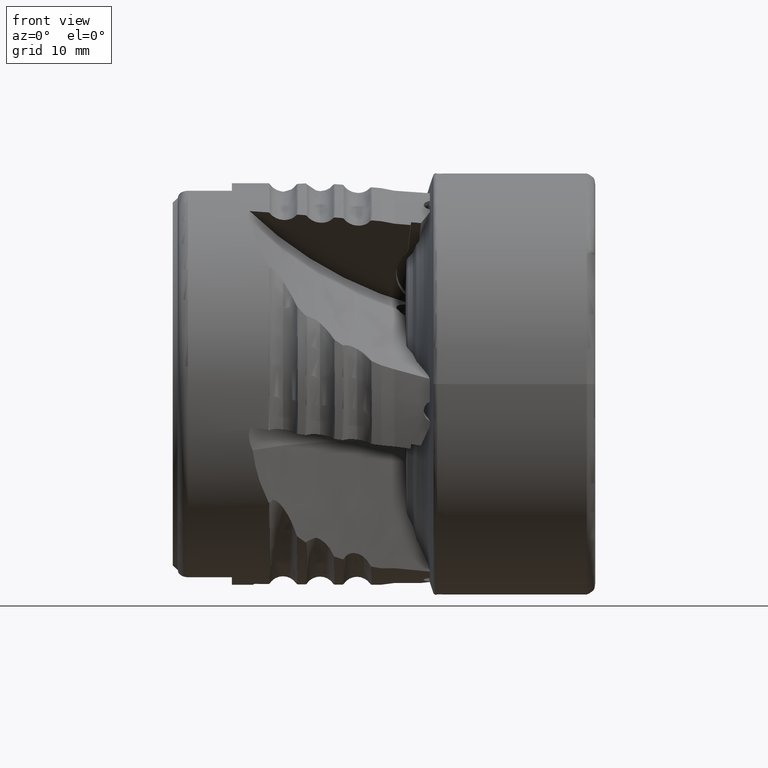
[diagram: clean part render]
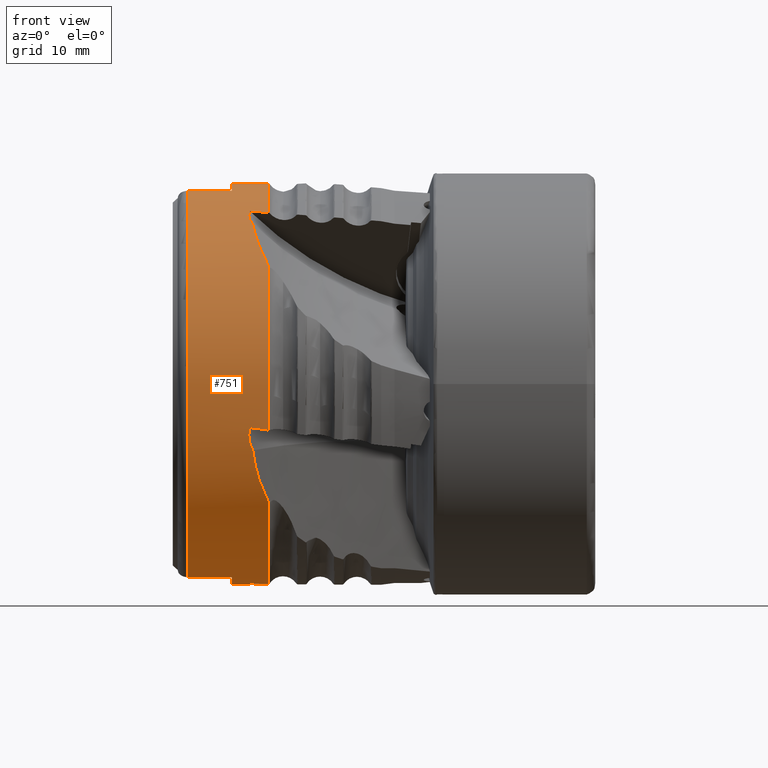
[diagram: same view with one face highlighted and labeled with its STEP entity id]
A machine part, front view. The second image highlights one B-rep face of the part: STEP entity #751.
In plain terms, the highlighted cylindrical surface (partial cylindrical patch) has radius 19 mm, axis along (1, -0, -0).
Its self-contained STEP definition (entity closure, byte-faithful):
#52 = CIRCLE ( 'NONE', #12871, 18.99999999999999645 ) ;
#86 = CARTESIAN_POINT ( 'NONE',  ( -31.36972384139765424, -17.77613083125737603, -6.725722720371739349 ) ) ;
#150 = CARTESIAN_POINT ( 'NONE',  ( -31.01255052282473557, -17.02613683079857765, -8.445114745144044477 ) ) ;
#168 = CARTESIAN_POINT ( 'NONE',  ( -29.95978721798715938, -1.566844918268218478, -18.93528444471053618 ) ) ;
#196 = DIRECTION ( 'NONE',  ( 0.0000000000000000000, 0.0000000000000000000, -1.000000000000000000 ) ) ;
#247 = CARTESIAN_POINT ( 'NONE',  ( -30.64794020038512201, -16.38685649265457300, -9.659613245262226755 ) ) ;
#259 = EDGE_CURVE ( 'NONE', #3836, #9022, #8375, .T. ) ;
#264 = CARTESIAN_POINT ( 'NONE',  ( -31.72241613714368214, -1.814566257837055163, -18.91315281215478805 ) ) ;
#449 = B_SPLINE_CURVE_WITH_KNOTS ( 'NONE', 3,
 ( #7345, #4895, #247, #150, #13425, #10919, #86, #12149 ),
 .UNSPECIFIED., .F., .F.,
 ( 4, 2, 2, 4 ),
 ( 4.971482375086823926E-07, 0.002839202081864523712, 0.004258554548678028691, 0.005677907015491536272 ),
 .UNSPECIFIED. ) ;
#461 = EDGE_CURVE ( 'NONE', #14911, #10778, #8873, .T. ) ;
#659 = DIRECTION ( 'NONE',  ( 1.000000000000000000, -0.0000000000000000000, -0.0000000000000000000 ) ) ;
#699 = DIRECTION ( 'NONE',  ( 1.000000000000000000, -0.0000000000000000000, -0.0000000000000000000 ) ) ;
#751 = ADVANCED_FACE ( 'NONE', ( #8241 ), #6740, .T. ) ;
#789 = DIRECTION ( 'NONE',  ( 0.0000000000000000000, 0.0000000000000000000, -1.000000000000000000 ) ) ;
#951 = DIRECTION ( 'NONE',  ( 1.000000000000000000, -0.0000000000000000000, -0.0000000000000000000 ) ) ;
#954 = ORIENTED_EDGE ( 'NONE', *, *, #7636, .F. ) ;
#1110 = CARTESIAN_POINT ( 'NONE',  ( -33.39999999999999147, 0.0000000000000000000, -18.99999999999999645 ) ) ;
#1114 =( BOUNDED_CURVE ( )  B_SPLINE_CURVE ( 3, ( #168, #2526, #11868, #2479 ),
 .UNSPECIFIED., .F., .T. ) 
 B_SPLINE_CURVE_WITH_KNOTS ( ( 4, 4 ),
 ( 1.653355604663631739, 1.666445593064935560 ),
 .UNSPECIFIED. ) 
 CURVE ( )  GEOMETRIC_REPRESENTATION_ITEM ( )  RATIONAL_B_SPLINE_CURVE ( ( 1.000000000000000000, 0.9999857210679433672, 0.9999857210679433672, 1.000000000000000000 ) ) 
 REPRESENTATION_ITEM ( '' )  );
#1180 = DIRECTION ( 'NONE',  ( 1.000000000000000000, -0.0000000000000000000, -0.0000000000000000000 ) ) ;
#1183 = CARTESIAN_POINT ( 'NONE',  ( -31.79837881631135943, -10.46221796008383542, 15.86120594255551275 ) ) ;
#1197 = ORIENTED_EDGE ( 'NONE', *, *, #12052, .F. ) ;
#1334 = CARTESIAN_POINT ( 'NONE',  ( -31.72241613714353647, -9.648857357328893158, 16.36763732790775450 ) ) ;
#1340 = DIRECTION ( 'NONE',  ( -1.000000000000000000, -0.0000000000000000000, 0.0000000000000000000 ) ) ;
#1574 = VERTEX_POINT ( 'NONE', #4521 ) ;
#1726 = LINE ( 'NONE', #8341, #2291 ) ;
#1778 = VERTEX_POINT ( 'NONE', #3993 ) ;
#1785 = EDGE_CURVE ( 'NONE', #3836, #14911, #11710, .T. ) ;
#1954 = VERTEX_POINT ( 'NONE', #10511 ) ;
#1956 = LINE ( 'NONE', #8704, #6421 ) ;
#2220 = DIRECTION ( 'NONE',  ( 1.000000000000000000, -0.0000000000000000000, -0.0000000000000000000 ) ) ;
#2291 = VECTOR ( 'NONE', #14421, 1000.000000000000000 ) ;
#2462 = ORIENTED_EDGE ( 'NONE', *, *, #8999, .F. ) ;
#2479 = CARTESIAN_POINT ( 'NONE',  ( -31.72241613714368214, -1.814566257837055163, -18.91315281215478805 ) ) ;
#2512 = CARTESIAN_POINT ( 'NONE',  ( -33.39999999999999147, -5.145316538372412651, 18.29004422411141206 ) ) ;
#2523 = EDGE_CURVE ( 'NONE', #5032, #8852, #12616, .T. ) ;
#2526 = CARTESIAN_POINT ( 'NONE',  ( -30.54766955579376386, -1.649466392730352116, -18.92844773529754931 ) ) ;
#2592 = VERTEX_POINT ( 'NONE', #2512 ) ;
#2660 = CIRCLE ( 'NONE', #9278, 18.99999999999999645 ) ;
#2747 = ORIENTED_EDGE ( 'NONE', *, *, #11428, .F. ) ;
#2862 = CARTESIAN_POINT ( 'NONE',  ( -31.51155348301428560, -17.99000763206012365, -6.114666803030551101 ) ) ;
#3118 = B_SPLINE_CURVE_WITH_KNOTS ( 'NONE', 3,
 ( #12392, #2862, #8697, #5100, #13619, #11052, #10003, #3884, #8648, #6455 ),
 .UNSPECIFIED., .F., .F.,
 ( 4, 2, 2, 2, 4 ),
 ( 0.002283460734623646380, 0.002858692298362381159, 0.003433923862101116373, 0.004009155425839851586, 0.004584386989578585932 ),
 .UNSPECIFIED. ) ;
#3134 = AXIS2_PLACEMENT_3D ( 'NONE', #9262, #12672, #789 ) ;
#3153 = EDGE_CURVE ( 'NONE', #6307, #11660, #1956, .T. ) ;
#3210 = CARTESIAN_POINT ( 'NONE',  ( -31.29701550650824160, -12.25470955441869059, 14.52729393647962652 ) ) ;
#3258 = CARTESIAN_POINT ( 'NONE',  ( -29.95978721798715938, 2.326828918379970576E-15, 18.99999999999999645 ) ) ;
#3282 = ORIENTED_EDGE ( 'NONE', *, *, #14799, .T. ) ;
#3497 = CARTESIAN_POINT ( 'NONE',  ( -31.76524766129033139, -9.810493652589578062, 16.27235139717186740 ) ) ;
#3601 = CARTESIAN_POINT ( 'NONE',  ( -31.80790247462925890, -10.30235358579706606, 15.96554395794222714 ) ) ;
#3836 = VERTEX_POINT ( 'NONE', #4839 ) ;
#3863 = EDGE_CURVE ( 'NONE', #2592, #1954, #1726, .T. ) ;
#3884 = CARTESIAN_POINT ( 'NONE',  ( -31.79162386349023706, -18.46255960649975592, -4.491210978813469090 ) ) ;
#3993 = CARTESIAN_POINT ( 'NONE',  ( -31.42600630155891750, -17.93324261203765957, -6.276847092114104854 ) ) ;
#4021 = ORIENTED_EDGE ( 'NONE', *, *, #3153, .F. ) ;
#4154 = VERTEX_POINT ( 'NONE', #12266 ) ;
#4226 = CARTESIAN_POINT ( 'NONE',  ( -33.39999999999999147, 2.326828918379970576E-15, 18.99999999999999645 ) ) ;
#4294 = CARTESIAN_POINT ( 'NONE',  ( -31.80571154105185627, -1.051295878076865975, -18.97150323781345449 ) ) ;
#4445 = CARTESIAN_POINT ( 'NONE',  ( -30.64832295469817325, -14.24994367137193763, 12.60069228079974124 ) ) ;
#4501 = B_SPLINE_CURVE_WITH_KNOTS ( 'NONE', 3,
 ( #8650, #5103, #12673, #9047, #11464, #4294, #13783, #11417, #7795, #11308 ),
 .UNSPECIFIED., .F., .F.,
 ( 4, 2, 2, 2, 4 ),
 ( 0.002747438311852670473, 0.003206675481284301018, 0.003665912650715931129, 0.004125149820147561673, 0.004584386989579192218 ),
 .UNSPECIFIED. ) ;
#4512 = DIRECTION ( 'NONE',  ( 0.0000000000000000000, 0.0000000000000000000, -1.000000000000000000 ) ) ;
#4521 = CARTESIAN_POINT ( 'NONE',  ( -29.95978721798683964, -15.39553059027739224, -11.13452458993345928 ) ) ;
#4542 = VERTEX_POINT ( 'NONE', #1334 ) ;
#4752 = DIRECTION ( 'NONE',  ( 0.0000000000000000000, 5.329070518200751394E-15, -1.000000000000000000 ) ) ;
#4783 = CARTESIAN_POINT ( 'NONE',  ( -31.72241613714358621, -18.54820903677684996, -4.118730572400882473 ) ) ;
#4839 = CARTESIAN_POINT ( 'NONE',  ( -29.95978721798685385, -15.34704275691988506, 11.20126236712955681 ) ) ;
#4895 = CARTESIAN_POINT ( 'NONE',  ( -30.34043940470079903, -15.91179435492168182, -10.42069486895743502 ) ) ;
#5018 = CARTESIAN_POINT ( 'NONE',  ( -31.72241613714358621, -18.54820903677684996, -4.118730572400882473 ) ) ;
#5032 = VERTEX_POINT ( 'NONE', #6241 ) ;
#5100 = CARTESIAN_POINT ( 'NONE',  ( -31.70255502896044675, -18.15881636309202207, -5.593885044579598009 ) ) ;
#5103 = CARTESIAN_POINT ( 'NONE',  ( -31.65929585948567393, -0.1454117262897260121, -19.00000000000002132 ) ) ;
#5263 = CIRCLE ( 'NONE', #9486, 19.00000000000000000 ) ;
#5501 = CARTESIAN_POINT ( 'NONE',  ( -31.01304923988518070, -13.29169015111255980, 13.58457058853856303 ) ) ;
#5573 = ORIENTED_EDGE ( 'NONE', *, *, #10915, .T. ) ;
#5745 = ORIENTED_EDGE ( 'NONE', *, *, #9408, .T. ) ;
#5835 = CARTESIAN_POINT ( 'NONE',  ( -31.79162386349023706, -9.976640145525674797, 16.17107710347262994 ) ) ;
#5846 = DIRECTION ( 'NONE',  ( 1.000000000000000000, -0.0000000000000000000, -0.0000000000000000000 ) ) ;
#5885 = CARTESIAN_POINT ( 'NONE',  ( -29.95978721798715938, 0.0000000000000000000, 0.0000000000000000000 ) ) ;
#6006 = DIRECTION ( 'NONE',  ( -1.000000000000000000, -0.0000000000000000000, 0.0000000000000000000 ) ) ;
#6127 = DIRECTION ( 'NONE',  ( 0.0000000000000000000, 0.0000000000000000000, -1.000000000000000000 ) ) ;
#6241 = CARTESIAN_POINT ( 'NONE',  ( -37.54999999999999005, -5.145316538372412651, -18.29004422411141562 ) ) ;
#6298 = ORIENTED_EDGE ( 'NONE', *, *, #12158, .T. ) ;
#6307 = VERTEX_POINT ( 'NONE', #4226 ) ;
#6421 = VECTOR ( 'NONE', #699, 1000.000000000000000 ) ;
#6455 = CARTESIAN_POINT ( 'NONE',  ( -31.72241613714358621, -18.54820903677684996, -4.118730572400882473 ) ) ;
#6740 = CYLINDRICAL_SURFACE ( 'NONE', #14944, 18.99999999999999645 ) ;
#6742 = CARTESIAN_POINT ( 'NONE',  ( -30.34066985866837740, -14.82737019696995517, 11.91327470428843149 ) ) ;
#6936 = CARTESIAN_POINT ( 'NONE',  ( -31.72241613714353647, -9.648857357328893158, 16.36763732790775450 ) ) ;
#7137 = CARTESIAN_POINT ( 'NONE',  ( -31.42600630155915198, -11.51131306011208721, 15.11587482192436305 ) ) ;
#7345 = CARTESIAN_POINT ( 'NONE',  ( -29.95978721798683964, -15.39553059027739224, -11.13452458993345928 ) ) ;
#7586 = ORIENTED_EDGE ( 'NONE', *, *, #461, .F. ) ;
#7609 = CARTESIAN_POINT ( 'NONE',  ( -29.95978721798715938, -18.49270736633913259, -4.361166617196155393 ) ) ;
#7636 = EDGE_CURVE ( 'NONE', #11660, #11285, #11885, .T. ) ;
#7731 = CARTESIAN_POINT ( 'NONE',  ( -29.95978721798685385, -15.34704275691988506, 11.20126236712955681 ) ) ;
#7782 = ORIENTED_EDGE ( 'NONE', *, *, #3863, .T. ) ;
#7795 = CARTESIAN_POINT ( 'NONE',  ( -31.75661076266755245, -1.665454754438457252, -18.92745887235586011 ) ) ;
#8112 = CARTESIAN_POINT ( 'NONE',  ( 0.0000000000000000000, 0.0000000000000000000, 0.0000000000000000000 ) ) ;
#8185 = CARTESIAN_POINT ( 'NONE',  ( -31.74592189832560507, -10.77627000204222618, 15.64953237127371999 ) ) ;
#8241 = FACE_OUTER_BOUND ( 'NONE', #14696, .T. ) ;
#8341 = CARTESIAN_POINT ( 'NONE',  ( 0.0000000000000000000, -5.145316538372412651, 18.29004422411141206 ) ) ;
#8375 = B_SPLINE_CURVE_WITH_KNOTS ( 'NONE', 3,
 ( #7731, #6742, #4445, #5501, #13869, #3210, #10406, #11450 ),
 .UNSPECIFIED., .F., .F.,
 ( 4, 2, 2, 4 ),
 ( 4.971695504136532579E-07, 0.002841042465384935670, 0.004261315113302195645, 0.005681587761219453019 ),
 .UNSPECIFIED. ) ;
#8543 = ORIENTED_EDGE ( 'NONE', *, *, #10216, .F. ) ;
#8570 = CARTESIAN_POINT ( 'NONE',  ( -33.39999999999999147, 0.0000000000000000000, 0.0000000000000000000 ) ) ;
#8576 = VERTEX_POINT ( 'NONE', #264 ) ;
#8648 = CARTESIAN_POINT ( 'NONE',  ( -31.76524766129035271, -18.50753509358257176, -4.301900796200607502 ) ) ;
#8650 = CARTESIAN_POINT ( 'NONE',  ( -31.60790228931525903, -1.010993022917562353E-15, -18.99999999999999645 ) ) ;
#8697 = CARTESIAN_POINT ( 'NONE',  ( -31.58478523691141859, -18.04655762342485303, -5.946084387634963164 ) ) ;
#8704 = CARTESIAN_POINT ( 'NONE',  ( 0.0000000000000000000, 2.326828918379970576E-15, 18.99999999999999645 ) ) ;
#8852 = VERTEX_POINT ( 'NONE', #13645 ) ;
#8873 =( BOUNDED_CURVE ( )  B_SPLINE_CURVE ( 3, ( #14744, #9933, #12367, #5018 ),
 .UNSPECIFIED., .F., .F. ) 
 B_SPLINE_CURVE_WITH_KNOTS ( ( 4, 4 ),
 ( 1.653355604663631739, 1.666445593064935560 ),
 .UNSPECIFIED. ) 
 CURVE ( )  GEOMETRIC_REPRESENTATION_ITEM ( )  RATIONAL_B_SPLINE_CURVE ( ( 1.000000000000000000, 0.9999857210679433672, 0.9999857210679433672, 1.000000000000000000 ) ) 
 REPRESENTATION_ITEM ( '' )  );
#8956 = CARTESIAN_POINT ( 'NONE',  ( 0.0000000000000000000, 0.0000000000000000000, -18.99999999999999645 ) ) ;
#8999 = EDGE_CURVE ( 'NONE', #1574, #4154, #52, .T. ) ;
#9022 = VERTEX_POINT ( 'NONE', #11786 ) ;
#9047 = CARTESIAN_POINT ( 'NONE',  ( -31.76470201318048225, -0.5961929239484751175, -18.99123809690343734 ) ) ;
#9125 = CIRCLE ( 'NONE', #15436, 18.99999999999999645 ) ;
#9255 =( BOUNDED_CURVE ( )  B_SPLINE_CURVE ( 3, ( #10292, #11482, #12902, #6936 ),
 .UNSPECIFIED., .F., .T. ) 
 B_SPLINE_CURVE_WITH_KNOTS ( ( 4, 4 ),
 ( 1.653355604663631739, 1.666445593064935560 ),
 .UNSPECIFIED. ) 
 CURVE ( )  GEOMETRIC_REPRESENTATION_ITEM ( )  RATIONAL_B_SPLINE_CURVE ( ( 1.000000000000000000, 0.9999857210679433672, 0.9999857210679433672, 1.000000000000000000 ) ) 
 REPRESENTATION_ITEM ( '' )  );
#9262 = CARTESIAN_POINT ( 'NONE',  ( -29.95978721798715938, 0.0000000000000000000, 0.0000000000000000000 ) ) ;
#9278 = AXIS2_PLACEMENT_3D ( 'NONE', #13177, #6006, #4752 ) ;
#9300 = DIRECTION ( 'NONE',  ( 0.0000000000000000000, 0.0000000000000000000, -1.000000000000000000 ) ) ;
#9408 = EDGE_CURVE ( 'NONE', #12649, #8576, #4501, .T. ) ;
#9417 = CARTESIAN_POINT ( 'NONE',  ( -29.95978721798715938, -9.862276778134813071, 16.23993524468194138 ) ) ;
#9486 = AXIS2_PLACEMENT_3D ( 'NONE', #13015, #2220, #9300 ) ;
#9933 = CARTESIAN_POINT ( 'NONE',  ( -30.54766955579375676, -18.51173670901100010, -4.280476266128813378 ) ) ;
#10003 = CARTESIAN_POINT ( 'NONE',  ( -31.80790247462925180, -18.36773695746861534, -4.864496103504736269 ) ) ;
#10049 = EDGE_CURVE ( 'NONE', #1954, #5032, #5263, .T. ) ;
#10172 = ORIENTED_EDGE ( 'NONE', *, *, #2523, .T. ) ;
#10216 = EDGE_CURVE ( 'NONE', #2592, #6307, #2660, .T. ) ;
#10292 = CARTESIAN_POINT ( 'NONE',  ( -29.95978721798715938, -9.862276778134813071, 16.23993524468194138 ) ) ;
#10356 = ORIENTED_EDGE ( 'NONE', *, *, #10049, .T. ) ;
#10406 = CARTESIAN_POINT ( 'NONE',  ( -31.37012929419710616, -11.88694330595567372, 14.82981811626298629 ) ) ;
#10446 = AXIS2_PLACEMENT_3D ( 'NONE', #12115, #13286, #6127 ) ;
#10479 = EDGE_CURVE ( 'NONE', #12631, #12649, #14245, .T. ) ;
#10511 = CARTESIAN_POINT ( 'NONE',  ( -37.54999999999999005, -5.145316538372412651, 18.29004422411141562 ) ) ;
#10778 = VERTEX_POINT ( 'NONE', #4783 ) ;
#10788 = CARTESIAN_POINT ( 'NONE',  ( -31.60790228931525903, -1.010993022917562353E-15, -18.99999999999999645 ) ) ;
#10915 = EDGE_CURVE ( 'NONE', #1778, #10778, #3118, .T. ) ;
#10919 = CARTESIAN_POINT ( 'NONE',  ( -31.29649912575811754, -17.60202850831963417, -7.168573402187065291 ) ) ;
#11052 = CARTESIAN_POINT ( 'NONE',  ( -31.79837881631135943, -18.31790641648750650, -5.048778378307472892 ) ) ;
#11136 = B_SPLINE_CURVE_WITH_KNOTS ( 'NONE', 3,
 ( #7137, #15527, #11789, #14376, #8185, #1183, #3601, #5835, #3497, #11938 ),
 .UNSPECIFIED., .F., .F.,
 ( 4, 2, 2, 2, 4 ),
 ( 0.002283460734624546268, 0.002858692298363246787, 0.003433923862101946872, 0.004009155425840646957, 0.004584386989579347475 ),
 .UNSPECIFIED. ) ;
#11285 = VERTEX_POINT ( 'NONE', #9417 ) ;
#11308 = CARTESIAN_POINT ( 'NONE',  ( -31.72241613714368214, -1.814566257837055163, -18.91315281215478805 ) ) ;
#11417 = CARTESIAN_POINT ( 'NONE',  ( -31.78041039951228086, -1.512018630216130699, -18.94036974237214466 ) ) ;
#11428 = EDGE_CURVE ( 'NONE', #4154, #8576, #1114, .T. ) ;
#11450 = CARTESIAN_POINT ( 'NONE',  ( -31.42600630155915198, -11.51131306011208721, 15.11587482192436305 ) ) ;
#11464 = CARTESIAN_POINT ( 'NONE',  ( -31.78560544504668073, -0.7472811000914280077, -18.98590869784941404 ) ) ;
#11482 = CARTESIAN_POINT ( 'NONE',  ( -30.54766955579371768, -9.791416084227472894, 16.28296791479272443 ) ) ;
#11660 = VERTEX_POINT ( 'NONE', #3258 ) ;
#11710 = CIRCLE ( 'NONE', #3134, 18.99999999999999645 ) ;
#11786 = CARTESIAN_POINT ( 'NONE',  ( -31.42600630155915198, -11.51131306011208721, 15.11587482192436305 ) ) ;
#11789 = CARTESIAN_POINT ( 'NONE',  ( -31.58478523691146123, -11.23175529890601965, 15.32585509868753348 ) ) ;
#11868 = CARTESIAN_POINT ( 'NONE',  ( -31.13522091845191397, -1.732041351668855755, -18.92107041910543686 ) ) ;
#11885 = CIRCLE ( 'NONE', #10446, 18.99999999999999645 ) ;
#11894 = EDGE_CURVE ( 'NONE', #12631, #8852, #9125, .T. ) ;
#11938 = CARTESIAN_POINT ( 'NONE',  ( -31.72241613714353647, -9.648857357328893158, 16.36763732790775450 ) ) ;
#12052 = EDGE_CURVE ( 'NONE', #11285, #4542, #9255, .T. ) ;
#12115 = CARTESIAN_POINT ( 'NONE',  ( -29.95978721798715938, 0.0000000000000000000, 0.0000000000000000000 ) ) ;
#12149 = CARTESIAN_POINT ( 'NONE',  ( -31.42600630155891750, -17.93324261203765957, -6.276847092114104854 ) ) ;
#12158 = EDGE_CURVE ( 'NONE', #9022, #4542, #11136, .T. ) ;
#12227 = VECTOR ( 'NONE', #5846, 1000.000000000000000 ) ;
#12266 = CARTESIAN_POINT ( 'NONE',  ( -29.95978721798715938, -1.566844918268218478, -18.93528444471053618 ) ) ;
#12367 = CARTESIAN_POINT ( 'NONE',  ( -31.13522091845189976, -18.53023752999554219, -4.199663097271305823 ) ) ;
#12392 = CARTESIAN_POINT ( 'NONE',  ( -31.42600630155891750, -17.93324261203765957, -6.276847092114104854 ) ) ;
#12405 = ORIENTED_EDGE ( 'NONE', *, *, #10479, .T. ) ;
#12542 = VECTOR ( 'NONE', #659, 1000.000000000000000 ) ;
#12616 = LINE ( 'NONE', #13011, #12227 ) ;
#12631 = VERTEX_POINT ( 'NONE', #1110 ) ;
#12649 = VERTEX_POINT ( 'NONE', #10788 ) ;
#12672 = DIRECTION ( 'NONE',  ( 1.000000000000000000, -0.0000000000000000000, -0.0000000000000000000 ) ) ;
#12673 = CARTESIAN_POINT ( 'NONE',  ( -31.70178785756975870, -0.2958063781202893150, -18.99829121375146812 ) ) ;
#12871 = AXIS2_PLACEMENT_3D ( 'NONE', #5885, #1180, #13058 ) ;
#12902 = CARTESIAN_POINT ( 'NONE',  ( -31.13522091845185713, -9.720275261477191009, 16.32553588369314213 ) ) ;
#13011 = CARTESIAN_POINT ( 'NONE',  ( 0.0000000000000000000, -5.145316538372411763, -18.29004422411141206 ) ) ;
#13015 = CARTESIAN_POINT ( 'NONE',  ( -37.54999999999999005, 0.0000000000000000000, 0.0000000000000000000 ) ) ;
#13058 = DIRECTION ( 'NONE',  ( 0.0000000000000000000, 0.0000000000000000000, -1.000000000000000000 ) ) ;
#13177 = CARTESIAN_POINT ( 'NONE',  ( -33.39999999999999147, 0.0000000000000000000, 0.0000000000000000000 ) ) ;
#13286 = DIRECTION ( 'NONE',  ( 1.000000000000000000, -0.0000000000000000000, -0.0000000000000000000 ) ) ;
#13425 = CARTESIAN_POINT ( 'NONE',  ( -31.11784996409393500, -17.22700367811130207, -8.028087973146568856 ) ) ;
#13619 = CARTESIAN_POINT ( 'NONE',  ( -31.74592189832559086, -18.21364030527577427, -5.412870350053934132 ) ) ;
#13645 = CARTESIAN_POINT ( 'NONE',  ( -33.39999999999999147, -5.145316538372411763, -18.29004422411141206 ) ) ;
#13649 = ORIENTED_EDGE ( 'NONE', *, *, #1785, .F. ) ;
#13783 = CARTESIAN_POINT ( 'NONE',  ( -31.80491875066446283, -1.204222073626633360, -18.96242746889957687 ) ) ;
#13869 = CARTESIAN_POINT ( 'NONE',  ( -31.11836832883085080, -12.95687188256700040, 13.90466275746316249 ) ) ;
#13887 = ORIENTED_EDGE ( 'NONE', *, *, #259, .T. ) ;
#14020 = ORIENTED_EDGE ( 'NONE', *, *, #11894, .F. ) ;
#14245 = LINE ( 'NONE', #8956, #12542 ) ;
#14376 = CARTESIAN_POINT ( 'NONE',  ( -31.70255502896047162, -10.93148367698261225, 15.54145508697086342 ) ) ;
#14421 = DIRECTION ( 'NONE',  ( -1.000000000000000000, 0.0000000000000000000, 0.0000000000000000000 ) ) ;
#14696 = EDGE_LOOP ( 'NONE', ( #4021, #8543, #7782, #10356, #10172, #14020, #12405, #5745, #2747, #2462, #3282, #5573, #7586, #13649, #13887, #6298, #1197, #954 ) ) ;
#14744 = CARTESIAN_POINT ( 'NONE',  ( -29.95978721798715938, -18.49270736633913259, -4.361166617196155393 ) ) ;
#14799 = EDGE_CURVE ( 'NONE', #1574, #1778, #449, .T. ) ;
#14911 = VERTEX_POINT ( 'NONE', #7609 ) ;
#14944 = AXIS2_PLACEMENT_3D ( 'NONE', #8112, #951, #4512 ) ;
#15436 = AXIS2_PLACEMENT_3D ( 'NONE', #8570, #1340, #196 ) ;
#15527 = CARTESIAN_POINT ( 'NONE',  ( -31.51155348301433534, -11.37461179523730692, 15.21997802959365664 ) ) ;